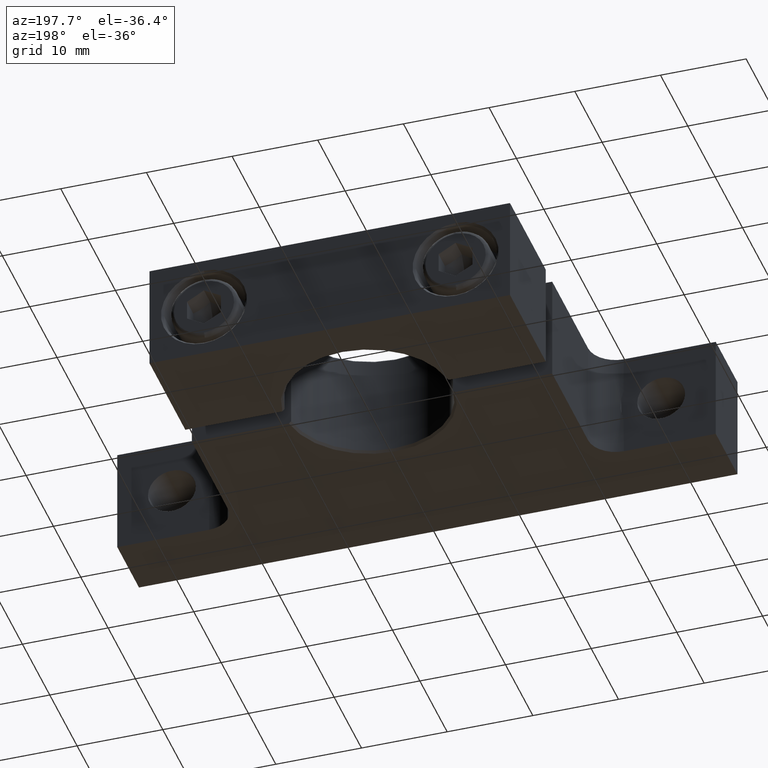
[diagram: clean part render]
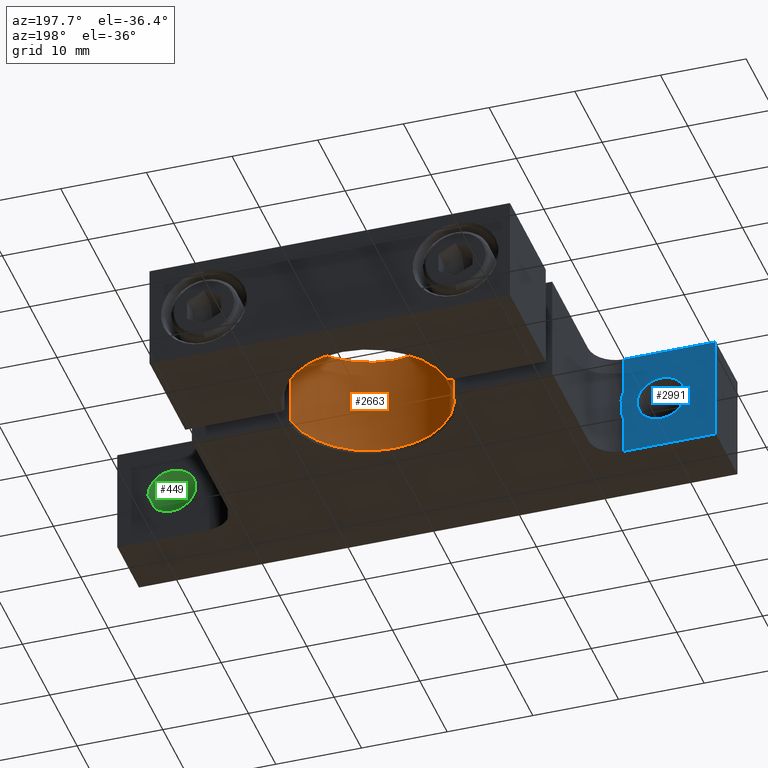
[diagram: same view with three faces highlighted in distinct colors, each labeled with its STEP entity id]
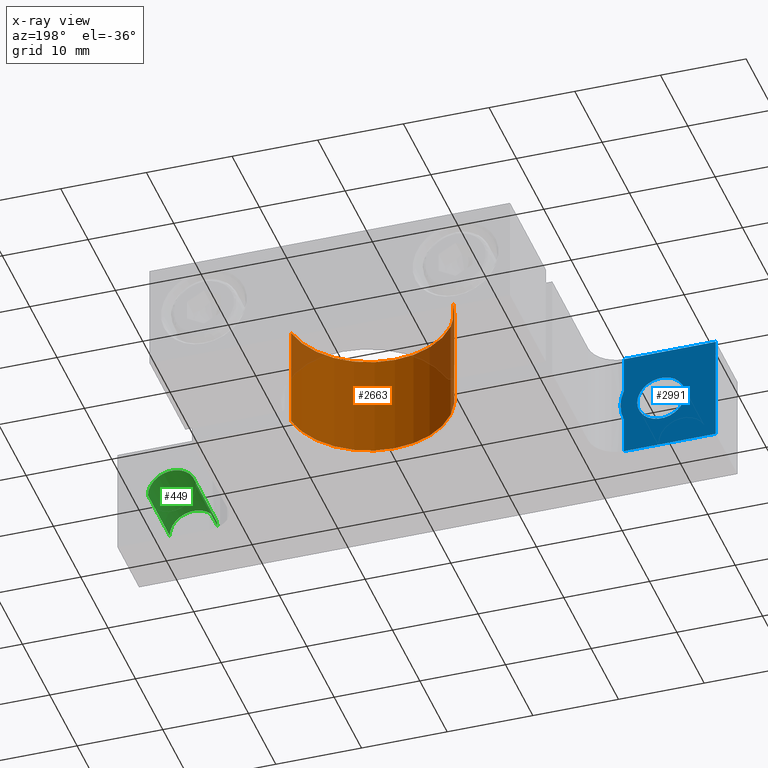
[diagram: x-ray of the same camera — body ghosted, the three highlighted faces saturated]
A machine part, auxiliary view with three faces highlighted in distinct colors.
The next image is the same camera in x-ray (body ghosted, the three faces saturated) — at least one of them is partly hidden behind the body in this view.
Their STEP definitions:

[orange] entity #2663 — the highlighted cylindrical surface (partial cylindrical patch) has radius 9.525 mm, axis along (0, 0, 1).
#28 = EDGE_CURVE ( 'NONE', #1483, #640, #4562, .T. ) ;
#57 = ORIENTED_EDGE ( 'NONE', *, *, #3269, .T. ) ;
#93 = DIRECTION ( 'NONE',  ( 0.0000000000000000000, 0.0000000000000000000, 1.000000000000000000 ) ) ;
#98 = VERTEX_POINT ( 'NONE', #2009 ) ;
#395 = DIRECTION ( 'NONE',  ( 0.0000000000000000000, -0.0000000000000000000, 1.000000000000000000 ) ) ;
#397 = CIRCLE ( 'NONE', #3945, 0.3750000000000000600 ) ;
#572 = CARTESIAN_POINT ( 'NONE',  ( 0.3720587781207193600, -0.04687500000000000700, 0.2399999999955126600 ) ) ;
#640 = VERTEX_POINT ( 'NONE', #572 ) ;
#962 = CARTESIAN_POINT ( 'NONE',  ( -0.3720587781207193600, -0.04687500000000000700, 0.2399999999932690400 ) ) ;
#1061 = ORIENTED_EDGE ( 'NONE', *, *, #2932, .F. ) ;
#1259 = DIRECTION ( 'NONE',  ( 0.0000000000000000000, 0.0000000000000000000, 1.000000000000000000 ) ) ;
#1401 = EDGE_CURVE ( 'NONE', #4770, #98, #3494, .T. ) ;
#1483 = VERTEX_POINT ( 'NONE', #4275 ) ;
#1712 = CARTESIAN_POINT ( 'NONE',  ( 0.0000000000000000000, 0.0000000000000000000, -0.2400000000000000500 ) ) ;
#1825 = FACE_OUTER_BOUND ( 'NONE', #3373, .T. ) ;
#1864 = ORIENTED_EDGE ( 'NONE', *, *, #28, .F. ) ;
#2000 = AXIS2_PLACEMENT_3D ( 'NONE', #3890, #93, #2772 ) ;
#2009 = CARTESIAN_POINT ( 'NONE',  ( -0.3720587781207015900, -0.04687500000000000700, -0.2399999999977386900 ) ) ;
#2084 = DIRECTION ( 'NONE',  ( 1.000000000000000000, 0.0000000000000000000, 0.0000000000000000000 ) ) ;
#2126 = AXIS2_PLACEMENT_3D ( 'NONE', #3524, #1259, #3925 ) ;
#2243 = CIRCLE ( 'NONE', #2126, 0.3750000000044872400 ) ;
#2474 = VECTOR ( 'NONE', #2527, 39.37007874015748100 ) ;
#2521 = CYLINDRICAL_SURFACE ( 'NONE', #2000, 0.3750000000000000600 ) ;
#2527 = DIRECTION ( 'NONE',  ( -0.0000000000000000000, 0.0000000000000000000, -1.000000000000000000 ) ) ;
#2659 = CARTESIAN_POINT ( 'NONE',  ( 0.3720587781184580000, -0.04687500000000000700, 0.0000000000000000000 ) ) ;
#2663 = ADVANCED_FACE ( 'NONE', ( #1825 ), #2521, .F. ) ;
#2772 = DIRECTION ( 'NONE',  ( 1.000000000000000000, 0.0000000000000000000, 0.0000000000000000000 ) ) ;
#2932 = EDGE_CURVE ( 'NONE', #98, #1483, #397, .T. ) ;
#3269 = EDGE_CURVE ( 'NONE', #4770, #640, #2243, .T. ) ;
#3373 = EDGE_LOOP ( 'NONE', ( #3676, #57, #1864, #1061 ) ) ;
#3494 = LINE ( 'NONE', #4479, #2474 ) ;
#3513 = VECTOR ( 'NONE', #395, 39.37007874015748100 ) ;
#3524 = CARTESIAN_POINT ( 'NONE',  ( 0.0000000000000000000, 0.0000000000000000000, 0.2399999999955126600 ) ) ;
#3676 = ORIENTED_EDGE ( 'NONE', *, *, #1401, .F. ) ;
#3890 = CARTESIAN_POINT ( 'NONE',  ( 0.0000000000000000000, 0.0000000000000000000, 0.0000000000000000000 ) ) ;
#3925 = DIRECTION ( 'NONE',  ( -0.9921567416492215200, -0.1250000000000000800, 0.0000000000000000000 ) ) ;
#3945 = AXIS2_PLACEMENT_3D ( 'NONE', #1712, #4383, #2084 ) ;
#4275 = CARTESIAN_POINT ( 'NONE',  ( 0.3720587781207015400, -0.04687500000000000700, -0.2399999999977387200 ) ) ;
#4383 = DIRECTION ( 'NONE',  ( 0.0000000000000000000, 0.0000000000000000000, 1.000000000000000000 ) ) ;
#4479 = CARTESIAN_POINT ( 'NONE',  ( -0.3720587781184580000, -0.04687500000000000700, 0.0000000000000000000 ) ) ;
#4562 = LINE ( 'NONE', #2659, #3513 ) ;
#4770 = VERTEX_POINT ( 'NONE', #962 ) ;

[blue] entity #2991 — the highlighted planar face has unit normal (0, 1, 0).
#160 = ORIENTED_EDGE ( 'NONE', *, *, #3534, .F. ) ;
#377 = CARTESIAN_POINT ( 'NONE',  ( 5.463696000000001000E-017, -0.6875000000000001100, 0.2500000000000000600 ) ) ;
#541 = CARTESIAN_POINT ( 'NONE',  ( -1.375000000000000200, -0.6875000000000001100, -0.2500000000000000600 ) ) ;
#582 = ORIENTED_EDGE ( 'NONE', *, *, #777, .T. ) ;
#584 = ORIENTED_EDGE ( 'NONE', *, *, #4837, .T. ) ;
#777 = EDGE_CURVE ( 'NONE', #3120, #4276, #2442, .T. ) ;
#848 = AXIS2_PLACEMENT_3D ( 'NONE', #1380, #4041, #1770 ) ;
#900 = EDGE_CURVE ( 'NONE', #4276, #3120, #2553, .T. ) ;
#907 = CARTESIAN_POINT ( 'NONE',  ( -0.9530000000000000700, -0.6875000000000001100, -0.2500000000000000600 ) ) ;
#1067 = AXIS2_PLACEMENT_3D ( 'NONE', #2102, #4782, #2465 ) ;
#1131 = CARTESIAN_POINT ( 'NONE',  ( -1.375000000000000200, -0.6875000000000001100, 0.0000000000000000000 ) ) ;
#1145 = VERTEX_POINT ( 'NONE', #907 ) ;
#1256 = EDGE_CURVE ( 'NONE', #3444, #1530, #1733, .T. ) ;
#1378 = ORIENTED_EDGE ( 'NONE', *, *, #900, .T. ) ;
#1380 = CARTESIAN_POINT ( 'NONE',  ( -1.124125000000000300, -0.6875000000000002200, 0.0000000000000000000 ) ) ;
#1501 = CARTESIAN_POINT ( 'NONE',  ( -1.124125000000000300, -0.6875000000000002200, 0.0000000000000000000 ) ) ;
#1512 = AXIS2_PLACEMENT_3D ( 'NONE', #1501, #4169, #1894 ) ;
#1530 = VERTEX_POINT ( 'NONE', #4635 ) ;
#1580 = VECTOR ( 'NONE', #3066, 39.37007874015748100 ) ;
#1636 = VECTOR ( 'NONE', #4022, 39.37007874015748100 ) ;
#1733 = LINE ( 'NONE', #377, #2724 ) ;
#1767 = CIRCLE ( 'NONE', #1067, 0.1875000000000001100 ) ;
#1769 = DIRECTION ( 'NONE',  ( 0.0000000000000000000, 1.000000000000000000, 0.0000000000000000000 ) ) ;
#1770 = DIRECTION ( 'NONE',  ( -1.000000000000000000, 0.0000000000000000000, 0.0000000000000000000 ) ) ;
#1788 = ORIENTED_EDGE ( 'NONE', *, *, #1936, .T. ) ;
#1894 = DIRECTION ( 'NONE',  ( -1.000000000000000000, 0.0000000000000000000, 0.0000000000000000000 ) ) ;
#1936 = EDGE_CURVE ( 'NONE', #2790, #1145, #2385, .T. ) ;
#2102 = CARTESIAN_POINT ( 'NONE',  ( -1.124125000000000000, -0.6875000000000001100, 0.0000000000000000000 ) ) ;
#2184 = DIRECTION ( 'NONE',  ( -0.0000000000000000000, 0.0000000000000000000, -1.000000000000000000 ) ) ;
#2275 = VECTOR ( 'NONE', #2184, 39.37007874015748100 ) ;
#2300 = AXIS2_PLACEMENT_3D ( 'NONE', #4035, #1769, #4433 ) ;
#2385 = LINE ( 'NONE', #3310, #2275 ) ;
#2442 = CIRCLE ( 'NONE', #848, 0.1100000000000000600 ) ;
#2444 = EDGE_CURVE ( 'NONE', #1145, #3868, #4753, .T. ) ;
#2459 = ORIENTED_EDGE ( 'NONE', *, *, #2444, .T. ) ;
#2465 = DIRECTION ( 'NONE',  ( -1.000000000000000000, 0.0000000000000000000, 0.0000000000000000000 ) ) ;
#2553 = CIRCLE ( 'NONE', #1512, 0.1100000000000000600 ) ;
#2635 = DIRECTION ( 'NONE',  ( -1.000000000000000000, -0.0000000000000000000, 0.0000000000000000000 ) ) ;
#2714 = EDGE_LOOP ( 'NONE', ( #584, #4616, #1788, #2459, #160, #3091 ) ) ;
#2724 = VECTOR ( 'NONE', #2635, 39.37007874015748100 ) ;
#2734 = VECTOR ( 'NONE', #4158, 39.37007874015748100 ) ;
#2790 = VERTEX_POINT ( 'NONE', #3892 ) ;
#2826 = FACE_BOUND ( 'NONE', #3888, .T. ) ;
#2846 = CARTESIAN_POINT ( 'NONE',  ( -0.9530000000000000700, -0.6875000000000001100, 0.0000000000000000000 ) ) ;
#2854 = LINE ( 'NONE', #1131, #2734 ) ;
#2991 = ADVANCED_FACE ( 'NONE', ( #2826, #3730 ), #3628, .T. ) ;
#3066 = DIRECTION ( 'NONE',  ( -1.000000000000000000, -0.0000000000000000000, 0.0000000000000000000 ) ) ;
#3091 = ORIENTED_EDGE ( 'NONE', *, *, #1256, .F. ) ;
#3120 = VERTEX_POINT ( 'NONE', #3807 ) ;
#3230 = CARTESIAN_POINT ( 'NONE',  ( -0.9530000000000000700, -0.6875000000000001100, 0.2500000000000000600 ) ) ;
#3310 = CARTESIAN_POINT ( 'NONE',  ( -0.9530000000000000700, -0.6875000000000001100, 0.0000000000000000000 ) ) ;
#3444 = VERTEX_POINT ( 'NONE', #3230 ) ;
#3534 = EDGE_CURVE ( 'NONE', #1530, #3868, #2854, .T. ) ;
#3628 = PLANE ( 'NONE',  #2300 ) ;
#3649 = LINE ( 'NONE', #2846, #1636 ) ;
#3730 = FACE_OUTER_BOUND ( 'NONE', #2714, .T. ) ;
#3807 = CARTESIAN_POINT ( 'NONE',  ( -1.014125000000000200, -0.6875000000000002200, 1.347111479062088300E-017 ) ) ;
#3849 = CARTESIAN_POINT ( 'NONE',  ( -1.375000000000000200, -0.6875000000000001100, -0.2500000000000000600 ) ) ;
#3868 = VERTEX_POINT ( 'NONE', #541 ) ;
#3888 = EDGE_LOOP ( 'NONE', ( #1378, #582 ) ) ;
#3892 = CARTESIAN_POINT ( 'NONE',  ( -0.9530000000000000700, -0.6875000000000001100, -0.07663213669864600600 ) ) ;
#4022 = DIRECTION ( 'NONE',  ( -0.0000000000000000000, 0.0000000000000000000, -1.000000000000000000 ) ) ;
#4035 = CARTESIAN_POINT ( 'NONE',  ( -1.375000000000000200, -0.6875000000000001100, 0.0000000000000000000 ) ) ;
#4041 = DIRECTION ( 'NONE',  ( 4.143087000000000100E-016, -1.000000000000000000, -0.0000000000000000000 ) ) ;
#4158 = DIRECTION ( 'NONE',  ( -0.0000000000000000000, -0.0000000000000000000, -1.000000000000000000 ) ) ;
#4169 = DIRECTION ( 'NONE',  ( 4.143087000000000100E-016, -1.000000000000000000, -0.0000000000000000000 ) ) ;
#4276 = VERTEX_POINT ( 'NONE', #4769 ) ;
#4433 = DIRECTION ( 'NONE',  ( 0.0000000000000000000, -0.0000000000000000000, 1.000000000000000000 ) ) ;
#4616 = ORIENTED_EDGE ( 'NONE', *, *, #4779, .T. ) ;
#4635 = CARTESIAN_POINT ( 'NONE',  ( -1.375000000000000200, -0.6875000000000001100, 0.2500000000000000600 ) ) ;
#4701 = VERTEX_POINT ( 'NONE', #4751 ) ;
#4751 = CARTESIAN_POINT ( 'NONE',  ( -0.9530000000000000700, -0.6875000000000001100, 0.07663213669864604700 ) ) ;
#4753 = LINE ( 'NONE', #3849, #1580 ) ;
#4769 = CARTESIAN_POINT ( 'NONE',  ( -1.234125000000000400, -0.6875000000000002200, 0.0000000000000000000 ) ) ;
#4779 = EDGE_CURVE ( 'NONE', #4701, #2790, #1767, .T. ) ;
#4782 = DIRECTION ( 'NONE',  ( -3.496764999999999800E-016, 1.000000000000000000, 0.0000000000000000000 ) ) ;
#4837 = EDGE_CURVE ( 'NONE', #3444, #4701, #3649, .T. ) ;

[green] entity #449 — the highlighted cylindrical surface (edge-blend (fillet) strip) has radius 2.794 mm, axis along (-0, 1, 0).
#51 = ORIENTED_EDGE ( 'NONE', *, *, #2980, .T. ) ;
#187 = VECTOR ( 'NONE', #1171, 39.37007874015748100 ) ;
#449 = ADVANCED_FACE ( 'NONE', ( #2225 ), #2883, .F. ) ;
#560 = DIRECTION ( 'NONE',  ( 4.143087000000000100E-016, -1.000000000000000000, -0.0000000000000000000 ) ) ;
#762 = CARTESIAN_POINT ( 'NONE',  ( 1.234125000000001200, -1.000000000000000200, 1.347111479062091700E-017 ) ) ;
#957 = CARTESIAN_POINT ( 'NONE',  ( 1.124125000000002300, -3.640625000000000400, 0.0000000000000000000 ) ) ;
#959 = EDGE_CURVE ( 'NONE', #4774, #3897, #3458, .T. ) ;
#975 = CARTESIAN_POINT ( 'NONE',  ( 1.014125000000002200, -3.640625000000000400, 0.0000000000000000000 ) ) ;
#1171 = DIRECTION ( 'NONE',  ( -4.143087000000000100E-016, 1.000000000000000000, 0.0000000000000000000 ) ) ;
#1200 = LINE ( 'NONE', #2664, #187 ) ;
#1276 = AXIS2_PLACEMENT_3D ( 'NONE', #1450, #4122, #1843 ) ;
#1338 = DIRECTION ( 'NONE',  ( -4.143087000000000100E-016, 1.000000000000000000, 0.0000000000000000000 ) ) ;
#1450 = CARTESIAN_POINT ( 'NONE',  ( 1.124125000000001200, -1.000000000000000200, 0.0000000000000000000 ) ) ;
#1753 = DIRECTION ( 'NONE',  ( -4.143087000000000100E-016, 1.000000000000000000, 0.0000000000000000000 ) ) ;
#1843 = DIRECTION ( 'NONE',  ( -1.000000000000000000, 0.0000000000000000000, 0.0000000000000000000 ) ) ;
#2020 = AXIS2_PLACEMENT_3D ( 'NONE', #2830, #560, #3213 ) ;
#2045 = AXIS2_PLACEMENT_3D ( 'NONE', #957, #1338, #3234 ) ;
#2225 = FACE_OUTER_BOUND ( 'NONE', #2302, .T. ) ;
#2302 = EDGE_LOOP ( 'NONE', ( #4056, #2491, #51, #2897 ) ) ;
#2400 = LINE ( 'NONE', #975, #4759 ) ;
#2491 = ORIENTED_EDGE ( 'NONE', *, *, #4018, .F. ) ;
#2664 = CARTESIAN_POINT ( 'NONE',  ( 1.234125000000002100, -3.640625000000000400, 1.347111479062088800E-017 ) ) ;
#2830 = CARTESIAN_POINT ( 'NONE',  ( 1.124125000000000900, -0.6874999999999991100, 0.0000000000000000000 ) ) ;
#2883 = CYLINDRICAL_SURFACE ( 'NONE', #2045, 0.1100000000000000600 ) ;
#2897 = ORIENTED_EDGE ( 'NONE', *, *, #959, .F. ) ;
#2980 = EDGE_CURVE ( 'NONE', #4758, #3897, #2400, .T. ) ;
#3213 = DIRECTION ( 'NONE',  ( -1.000000000000000000, 0.0000000000000000000, 0.0000000000000000000 ) ) ;
#3222 = CARTESIAN_POINT ( 'NONE',  ( 1.014125000000001100, -1.000000000000000200, 0.0000000000000000000 ) ) ;
#3234 = DIRECTION ( 'NONE',  ( -1.000000000000000000, 0.0000000000000000000, 0.0000000000000000000 ) ) ;
#3458 = CIRCLE ( 'NONE', #2020, 0.1100000000000000600 ) ;
#3599 = CARTESIAN_POINT ( 'NONE',  ( 1.014125000000000800, -0.6874999999999991100, 0.0000000000000000000 ) ) ;
#3610 = CARTESIAN_POINT ( 'NONE',  ( 1.234125000000000800, -0.6874999999999991100, 1.347111479062089900E-017 ) ) ;
#3769 = CIRCLE ( 'NONE', #1276, 0.1100000000000000600 ) ;
#3897 = VERTEX_POINT ( 'NONE', #3599 ) ;
#4018 = EDGE_CURVE ( 'NONE', #4758, #4596, #3769, .T. ) ;
#4056 = ORIENTED_EDGE ( 'NONE', *, *, #4186, .F. ) ;
#4122 = DIRECTION ( 'NONE',  ( -4.143087000000000100E-016, 1.000000000000000000, 0.0000000000000000000 ) ) ;
#4186 = EDGE_CURVE ( 'NONE', #4596, #4774, #1200, .T. ) ;
#4596 = VERTEX_POINT ( 'NONE', #762 ) ;
#4758 = VERTEX_POINT ( 'NONE', #3222 ) ;
#4759 = VECTOR ( 'NONE', #1753, 39.37007874015748100 ) ;
#4774 = VERTEX_POINT ( 'NONE', #3610 ) ;